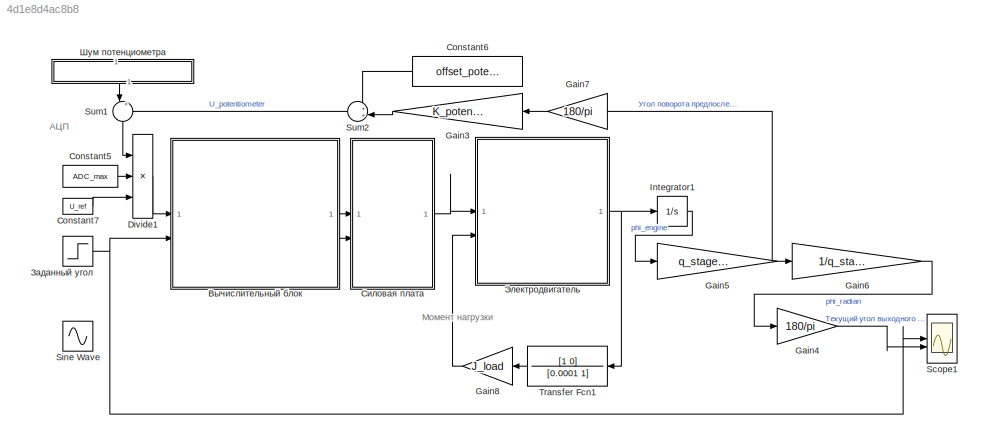
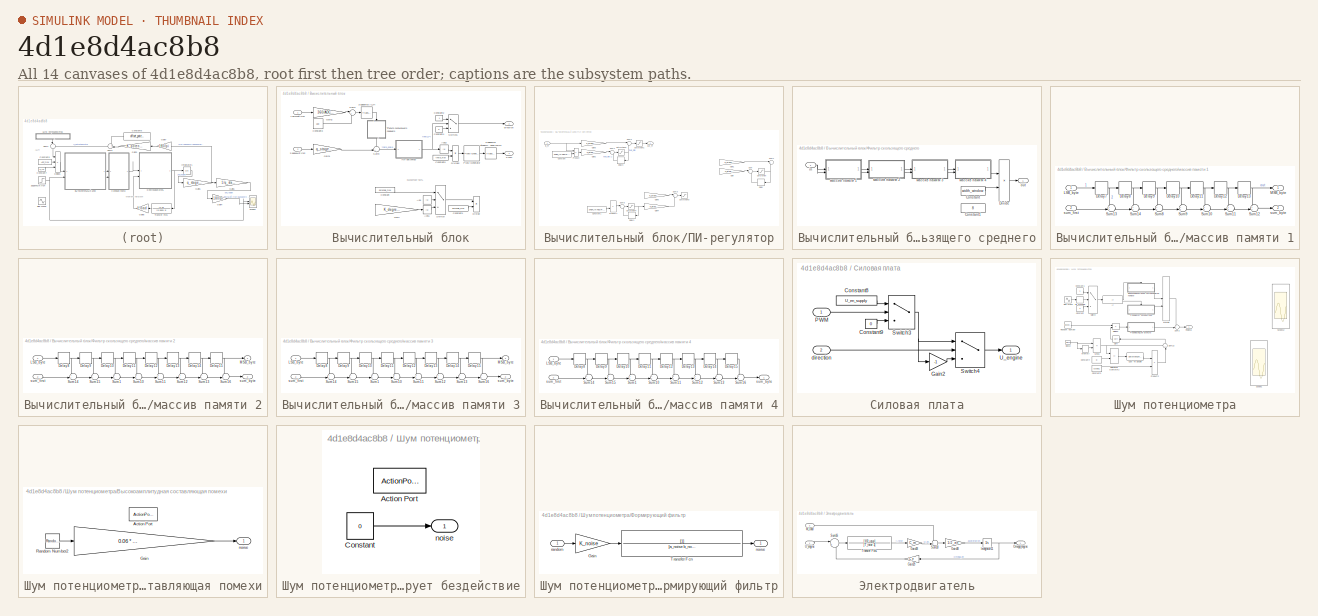
[diagram: thumbnail index - all 14 canvases of the model, root first then tree order]
MODEL slx_4d1e8d4ac8b8
KIND model
CONFIG AbsTol = auto
CONFIG EnableMultiTasking = on
CONFIG FixedStep = 1e-7
CONFIG MaxStep = auto
CONFIG MinStep = auto
CONFIG RelTol = 1e-3
CONFIG SampleTimeConstraint = Unconstrained
CONFIG SolverName = ode4
CONFIG StartTime = 0
CONFIG StopTime = 0.3
BLOCK [Constant] Constant5
  Value = ADC_max
BLOCK [Constant] Constant6
  NameLocation = top
  Value = offset_potentiometer
BLOCK [Constant] Constant7
  Value = U_ref
BLOCK [Product] Divide1
  Inputs = **/
BLOCK [Gain] Gain3
  Gain = K_potentiometer
  NameLocation = top
BLOCK [Gain] Gain4
  Gain = 180/pi
BLOCK [Gain] Gain5
  Gain = q_stage(5,1)/q
BLOCK [Gain] Gain6
  Gain = 1/q_stage(5,1)
BLOCK [Gain] Gain7
  Gain = 180/pi
  NameLocation = top
BLOCK [Gain] Gain8
  Gain = J_load
  NameLocation = top
BLOCK [Integrator] Integrator1
BLOCK [Scope] Scope1
  Floating = off
  NumInputPorts = 2
  ScopeSpecificationString = Simulink.scopes.TimeScopeBlockCfg('CurrentConfiguration', extmgr.ConfigurationSet(extmgr.Configuration('Core','General UI',true,'FigureColor',[0.862745098039216 0.862745098039216 0.862745098039216]),extmgr.Configuration('Core','Source UI',true),extmgr.Configuration('Sources','WiredSimulink',true,'DataLoggingVariableName','ScopeData1'),extmgr.Configuration('Visuals','Time Domain',true,'PlotType','L...<+1865ch>
BLOCK [Sin] Sine Wave
  Amplitude = phi_demanded
  Frequency = 2 * pi * 28.0
  SampleTime = 0
BLOCK [Sum] Sum1
  Inputs = |++
  NameLocation = left
BLOCK [Sum] Sum2
  Inputs = ++|
  NameLocation = top
BLOCK [TransferFcn] Transfer Fcn1
  Denominator = [0.0001 1]
  NameLocation = top
  Numerator = [1 0]
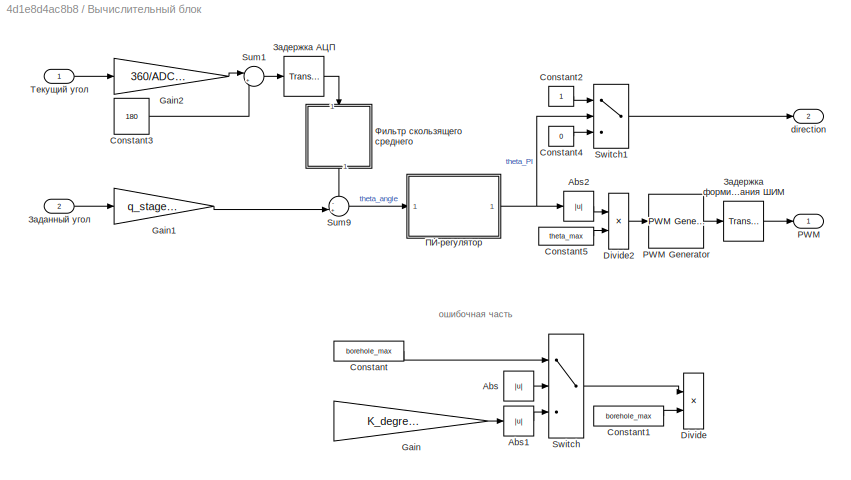
BLOCK [SubSystem] Вычислительный блок
BLOCK [Abs] Вычислительный блок/Abs
  Commented = on
  SaturateOnIntegerOverflow = off
BLOCK [Abs] Вычислительный блок/Abs1
  Commented = on
  SaturateOnIntegerOverflow = off
BLOCK [Abs] Вычислительный блок/Abs2
  SaturateOnIntegerOverflow = off
BLOCK [Constant] Вычислительный блок/Constant
  Commented = on
  Value = borehole_max
BLOCK [Constant] Вычислительный блок/Constant1
  Commented = on
  Value = borehole_max
BLOCK [Constant] Вычислительный блок/Constant2
BLOCK [Constant] Вычислительный блок/Constant3
  Value = 180
BLOCK [Constant] Вычислительный блок/Constant4
  Value = 0
BLOCK [Constant] Вычислительный блок/Constant5
  Value = theta_max
BLOCK [Product] Вычислительный блок/Divide
  Commented = on
  Inputs = */
BLOCK [Product] Вычислительный блок/Divide2
  Inputs = */
BLOCK [Gain] Вычислительный блок/Gain
  Commented = on
  Gain = K_degrees2borehole
BLOCK [Gain] Вычислительный блок/Gain1
  Gain = q_stage(5,1)
BLOCK [Gain] Вычислительный блок/Gain2
  Gain = 360/ADC_max
BLOCK [Outport] Вычислительный блок/PWM
BLOCK [Reference] Вычислительный блок/PWM Generator  REF=eePwmGenerator/PWM Generator
  LibrarySourceBlock = ee_sl_lib/Pulse Width\nModulation/PWM Generator
  SourceBlock = eePwmGenerator/PWM Generator
  SourceType = PWM Generator
BLOCK [Sum] Вычислительный блок/Sum1
  Inputs = |+-
BLOCK [Sum] Вычислительный блок/Sum9
  Inputs = -+|
BLOCK [Switch] Вычислительный блок/Switch
  Commented = on
  InputSameDT = off
  SaturateOnIntegerOverflow = off
  Threshold = 316
BLOCK [Switch] Вычислительный блок/Switch1
  Criteria = u2 > Threshold
  InputSameDT = off
  SaturateOnIntegerOverflow = off
BLOCK [Outport] Вычислительный блок/direction
  Port = 2
BLOCK [Inport] Вычислительный блок/Заданный угол
  Port = 2
BLOCK [TransportDelay] Вычислительный блок/Задержка АЦП
  DelayTime = delay_ADC - 0.276*1e-5
  NameLocation = top
BLOCK [TransportDelay] Вычислительный блок/Задержка формирования ШИМ
  DelayTime = delay_calc_borehole
  NameLocation = top
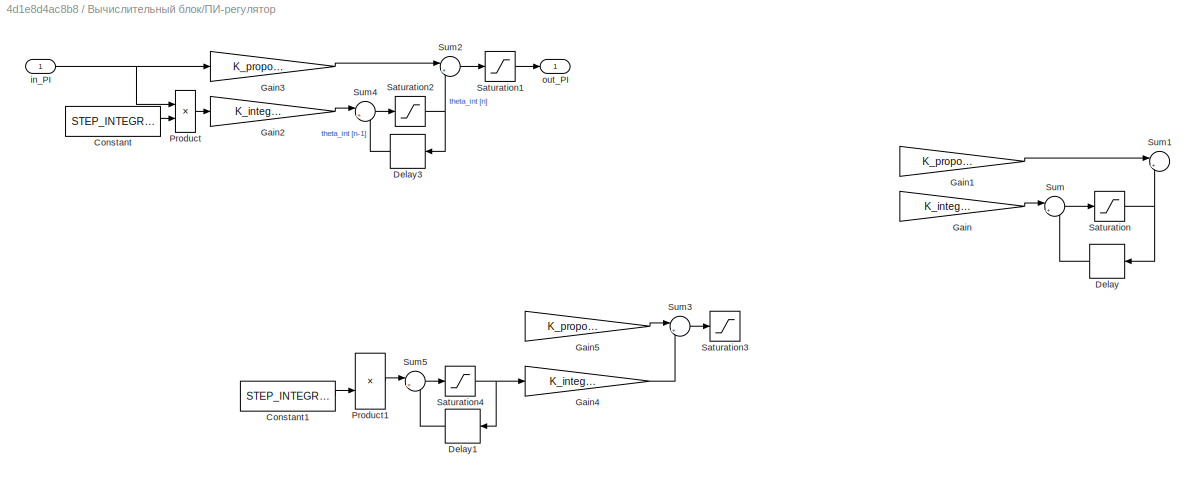
BLOCK [SubSystem] Вычислительный блок/ПИ-регулятор
BLOCK [Constant] Вычислительный блок/ПИ-регулятор/Constant
  Value = STEP_INTEGRAL
BLOCK [Constant] Вычислительный блок/ПИ-регулятор/Constant1
  Commented = on
  Value = STEP_INTEGRAL
BLOCK [Delay] Вычислительный блок/ПИ-регулятор/Delay
  Commented = on
  DelayLength = 1
  InputPortMap = u0
  NameLocation = top
  SampleTime = 0.0008
BLOCK [Delay] Вычислительный блок/ПИ-регулятор/Delay1
  Commented = on
  DelayLength = 1
  InputPortMap = u0
  NameLocation = top
  SampleTime = 0.000002
BLOCK [Delay] Вычислительный блок/ПИ-регулятор/Delay3
  DelayLength = 1
  InputPortMap = u0
  NameLocation = top
  SampleTime = 0.000002
BLOCK [Gain] Вычислительный блок/ПИ-регулятор/Gain
  Commented = on
  Gain = K_integral
BLOCK [Gain] Вычислительный блок/ПИ-регулятор/Gain1
  Commented = on
  Gain = K_proportional
BLOCK [Gain] Вычислительный блок/ПИ-регулятор/Gain2
  Gain = K_integral
BLOCK [Gain] Вычислительный блок/ПИ-регулятор/Gain3
  Gain = K_proportional
BLOCK [Gain] Вычислительный блок/ПИ-регулятор/Gain4
  Commented = on
  Gain = K_integral
BLOCK [Gain] Вычислительный блок/ПИ-регулятор/Gain5
  Commented = on
  Gain = K_proportional
BLOCK [Product] Вычислительный блок/ПИ-регулятор/Product
BLOCK [Product] Вычислительный блок/ПИ-регулятор/Product1
  Commented = on
BLOCK [Saturate] Вычислительный блок/ПИ-регулятор/Saturation
  Commented = on
BLOCK [Saturate] Вычислительный блок/ПИ-регулятор/Saturation1
  LowerLimit = -316
  UpperLimit = 316
BLOCK [Saturate] Вычислительный блок/ПИ-регулятор/Saturation2
BLOCK [Saturate] Вычислительный блок/ПИ-регулятор/Saturation3
  Commented = on
  LowerLimit = -316
  UpperLimit = 316
BLOCK [Saturate] Вычислительный блок/ПИ-регулятор/Saturation4
  Commented = on
BLOCK [Sum] Вычислительный блок/ПИ-регулятор/Sum
  Commented = on
  Inputs = |++
BLOCK [Sum] Вычислительный блок/ПИ-регулятор/Sum1
  Commented = on
  Inputs = |++
BLOCK [Sum] Вычислительный блок/ПИ-регулятор/Sum2
  Inputs = |++
BLOCK [Sum] Вычислительный блок/ПИ-регулятор/Sum3
  Commented = on
  Inputs = |++
BLOCK [Sum] Вычислительный блок/ПИ-регулятор/Sum4
  Inputs = |++
BLOCK [Sum] Вычислительный блок/ПИ-регулятор/Sum5
  Commented = on
  Inputs = |++
BLOCK [Inport] Вычислительный блок/ПИ-регулятор/in_PI
BLOCK [Outport] Вычислительный блок/ПИ-регулятор/out_PI
BLOCK [Inport] Вычислительный блок/Текущий угол
BLOCK [SubSystem] Вычислительный блок/Фильтр скользящего среднего
  NameLocation = right
BLOCK [Constant] Вычислительный блок/Фильтр скользящего среднего/Constant
  Value = width_window
BLOCK [Constant] Вычислительный блок/Фильтр скользящего среднего/Constant1
  Value = 8
BLOCK [Product] Вычислительный блок/Фильтр скользящего среднего/Divide
  Inputs = */
BLOCK [Inport] Вычислительный блок/Фильтр скользящего среднего/in
BLOCK [Outport] Вычислительный блок/Фильтр скользящего среднего/out
BLOCK [SubSystem] Вычислительный блок/Фильтр скользящего среднего/массив памяти 1
BLOCK [Delay] Вычислительный блок/Фильтр скользящего среднего/массив памяти 1/Delay10
  DelayLength = adc_delay_length
  InputPortMap = u0
  SampleTime = adc_sample
BLOCK [Delay] Вычислительный блок/Фильтр скользящего среднего/массив памяти 1/Delay11
  DelayLength = adc_delay_length
  InputPortMap = u0
  SampleTime = adc_sample
BLOCK [Delay] Вычислительный блок/Фильтр скользящего среднего/массив памяти 1/Delay12
  DelayLength = adc_delay_length
  InputPortMap = u0
  SampleTime = adc_sample
BLOCK [Delay] Вычислительный блок/Фильтр скользящего среднего/массив памяти 1/Delay13
  DelayLength = adc_delay_length
  InputPortMap = u0
  SampleTime = adc_sample
BLOCK [Delay] Вычислительный блок/Фильтр скользящего среднего/массив памяти 1/Delay7
  DelayLength = adc_delay_length
  InputPortMap = u0
  SampleTime = adc_sample
BLOCK [Delay] Вычислительный блок/Фильтр скользящего среднего/массив памяти 1/Delay8
  DelayLength = adc_delay_length
  InputPortMap = u0
  SampleTime = adc_sample
BLOCK [Delay] Вычислительный блок/Фильтр скользящего среднего/массив памяти 1/Delay9
  DelayLength = adc_delay_length
  InputPortMap = u0
  SampleTime = adc_sample
BLOCK [Inport] Вычислительный блок/Фильтр скользящего среднего/массив памяти 1/LSB_byte
BLOCK [Outport] Вычислительный блок/Фильтр скользящего среднего/массив памяти 1/MSB_byte
BLOCK [Sum] Вычислительный блок/Фильтр скользящего среднего/массив памяти 1/Sum10
  Inputs = ++|
BLOCK [Sum] Вычислительный блок/Фильтр скользящего среднего/массив памяти 1/Sum11
  Inputs = ++|
BLOCK [Sum] Вычислительный блок/Фильтр скользящего среднего/массив памяти 1/Sum12
  Inputs = ++|
BLOCK [Sum] Вычислительный блок/Фильтр скользящего среднего/массив памяти 1/Sum13
  Inputs = ++|
BLOCK [Sum] Вычислительный блок/Фильтр скользящего среднего/массив памяти 1/Sum14
  Inputs = ++|
BLOCK [Sum] Вычислительный блок/Фильтр скользящего среднего/массив памяти 1/Sum8
  Inputs = ++|
BLOCK [Sum] Вычислительный блок/Фильтр скользящего среднего/массив памяти 1/Sum9
  Inputs = ++|
BLOCK [Outport] Вычислительный блок/Фильтр скользящего среднего/массив памяти 1/sum_byte
  Port = 2
BLOCK [Inport] Вычислительный блок/Фильтр скользящего среднего/массив памяти 1/sum_first
  Port = 2
BLOCK [SubSystem] Вычислительный блок/Фильтр скользящего среднего/массив памяти 2
BLOCK [Delay] Вычислительный блок/Фильтр скользящего среднего/массив памяти 2/Delay10
  DelayLength = adc_delay_length
  InputPortMap = u0
  SampleTime = adc_sample
BLOCK [Delay] Вычислительный блок/Фильтр скользящего среднего/массив памяти 2/Delay11
  DelayLength = adc_delay_length
  InputPortMap = u0
  SampleTime = adc_sample
BLOCK [Delay] Вычислительный блок/Фильтр скользящего среднего/массив памяти 2/Delay12
  DelayLength = adc_delay_length
  InputPortMap = u0
  SampleTime = adc_sample
BLOCK [Delay] Вычислительный блок/Фильтр скользящего среднего/массив памяти 2/Delay13
  DelayLength = adc_delay_length
  InputPortMap = u0
  SampleTime = adc_sample
BLOCK [Delay] Вычислительный блок/Фильтр скользящего среднего/массив памяти 2/Delay14
  DelayLength = adc_delay_length
  InputPortMap = u0
  SampleTime = adc_sample
BLOCK [Delay] Вычислительный блок/Фильтр скользящего среднего/массив памяти 2/Delay15
  DelayLength = adc_delay_length
  InputPortMap = u0
  SampleTime = adc_sample
BLOCK [Delay] Вычислительный блок/Фильтр скользящего среднего/массив памяти 2/Delay8
  DelayLength = adc_delay_length
  InputPortMap = u0
  SampleTime = adc_sample
BLOCK [Delay] Вычислительный блок/Фильтр скользящего среднего/массив памяти 2/Delay9
  DelayLength = adc_delay_length
  InputPortMap = u0
  SampleTime = adc_sample
BLOCK [Inport] Вычислительный блок/Фильтр скользящего среднего/массив памяти 2/LSB_byte
BLOCK [Outport] Вычислительный блок/Фильтр скользящего среднего/массив памяти 2/MSB_byte
BLOCK [Sum] Вычислительный блок/Фильтр скользящего среднего/массив памяти 2/Sum1
  Inputs = ++|
BLOCK [Sum] Вычислительный блок/Фильтр скользящего среднего/массив памяти 2/Sum10
  Inputs = ++|
BLOCK [Sum] Вычислительный блок/Фильтр скользящего среднего/массив памяти 2/Sum11
  Inputs = ++|
BLOCK [Sum] Вычислительный блок/Фильтр скользящего среднего/массив памяти 2/Sum12
  Inputs = ++|
BLOCK [Sum] Вычислительный блок/Фильтр скользящего среднего/массив памяти 2/Sum13
  Inputs = ++|
BLOCK [Sum] Вычислительный блок/Фильтр скользящего среднего/массив памяти 2/Sum14
  Inputs = ++|
BLOCK [Sum] Вычислительный блок/Фильтр скользящего среднего/массив памяти 2/Sum15
  Inputs = ++|
BLOCK [Sum] Вычислительный блок/Фильтр скользящего среднего/массив памяти 2/Sum16
  Inputs = ++|
BLOCK [Outport] Вычислительный блок/Фильтр скользящего среднего/массив памяти 2/sum_byte
  Port = 2
BLOCK [Inport] Вычислительный блок/Фильтр скользящего среднего/массив памяти 2/sum_first
  Port = 2
BLOCK [SubSystem] Вычислительный блок/Фильтр скользящего среднего/массив памяти 3
BLOCK [Delay] Вычислительный блок/Фильтр скользящего среднего/массив памяти 3/Delay10
  DelayLength = adc_delay_length
  InputPortMap = u0
  SampleTime = adc_sample
BLOCK [Delay] Вычислительный блок/Фильтр скользящего среднего/массив памяти 3/Delay11
  DelayLength = adc_delay_length
  InputPortMap = u0
  SampleTime = adc_sample
BLOCK [Delay] Вычислительный блок/Фильтр скользящего среднего/массив памяти 3/Delay12
  DelayLength = adc_delay_length
  InputPortMap = u0
  SampleTime = adc_sample
BLOCK [Delay] Вычислительный блок/Фильтр скользящего среднего/массив памяти 3/Delay13
  DelayLength = adc_delay_length
  InputPortMap = u0
  SampleTime = adc_sample
BLOCK [Delay] Вычислительный блок/Фильтр скользящего среднего/массив памяти 3/Delay14
  DelayLength = adc_delay_length
  InputPortMap = u0
  SampleTime = adc_sample
BLOCK [Delay] Вычислительный блок/Фильтр скользящего среднего/массив памяти 3/Delay15
  DelayLength = adc_delay_length
  InputPortMap = u0
  SampleTime = adc_sample
BLOCK [Delay] Вычислительный блок/Фильтр скользящего среднего/массив памяти 3/Delay8
  DelayLength = adc_delay_length
  InputPortMap = u0
  SampleTime = adc_sample
BLOCK [Delay] Вычислительный блок/Фильтр скользящего среднего/массив памяти 3/Delay9
  DelayLength = adc_delay_length
  InputPortMap = u0
  SampleTime = adc_sample
BLOCK [Inport] Вычислительный блок/Фильтр скользящего среднего/массив памяти 3/LSB_byte
BLOCK [Outport] Вычислительный блок/Фильтр скользящего среднего/массив памяти 3/MSB_byte
BLOCK [Sum] Вычислительный блок/Фильтр скользящего среднего/массив памяти 3/Sum1
  Inputs = ++|
BLOCK [Sum] Вычислительный блок/Фильтр скользящего среднего/массив памяти 3/Sum10
  Inputs = ++|
BLOCK [Sum] Вычислительный блок/Фильтр скользящего среднего/массив памяти 3/Sum11
  Inputs = ++|
BLOCK [Sum] Вычислительный блок/Фильтр скользящего среднего/массив памяти 3/Sum12
  Inputs = ++|
BLOCK [Sum] Вычислительный блок/Фильтр скользящего среднего/массив памяти 3/Sum13
  Inputs = ++|
BLOCK [Sum] Вычислительный блок/Фильтр скользящего среднего/массив памяти 3/Sum14
  Inputs = ++|
BLOCK [Sum] Вычислительный блок/Фильтр скользящего среднего/массив памяти 3/Sum15
  Inputs = ++|
BLOCK [Sum] Вычислительный блок/Фильтр скользящего среднего/массив памяти 3/Sum16
  Inputs = ++|
BLOCK [Outport] Вычислительный блок/Фильтр скользящего среднего/массив памяти 3/sum_byte
  Port = 2
BLOCK [Inport] Вычислительный блок/Фильтр скользящего среднего/массив памяти 3/sum_first
  Port = 2
BLOCK [SubSystem] Вычислительный блок/Фильтр скользящего среднего/массив памяти 4
BLOCK [Delay] Вычислительный блок/Фильтр скользящего среднего/массив памяти 4/Delay10
  DelayLength = adc_delay_length
  InputPortMap = u0
  SampleTime = adc_sample
BLOCK [Delay] Вычислительный блок/Фильтр скользящего среднего/массив памяти 4/Delay11
  DelayLength = adc_delay_length
  InputPortMap = u0
  SampleTime = adc_sample
BLOCK [Delay] Вычислительный блок/Фильтр скользящего среднего/массив памяти 4/Delay12
  DelayLength = adc_delay_length
  InputPortMap = u0
  SampleTime = adc_sample
BLOCK [Delay] Вычислительный блок/Фильтр скользящего среднего/массив памяти 4/Delay13
  DelayLength = adc_delay_length
  InputPortMap = u0
  SampleTime = adc_sample
BLOCK [Delay] Вычислительный блок/Фильтр скользящего среднего/массив памяти 4/Delay14
  DelayLength = adc_delay_length
  InputPortMap = u0
  SampleTime = adc_sample
BLOCK [Delay] Вычислительный блок/Фильтр скользящего среднего/массив памяти 4/Delay15
  DelayLength = adc_delay_length
  InputPortMap = u0
BLOCK [Delay] Вычислительный блок/Фильтр скользящего среднего/массив памяти 4/Delay8
  DelayLength = adc_delay_length
  InputPortMap = u0
  SampleTime = adc_sample
BLOCK [Delay] Вычислительный блок/Фильтр скользящего среднего/массив памяти 4/Delay9
  DelayLength = adc_delay_length
  InputPortMap = u0
  SampleTime = adc_sample
BLOCK [Inport] Вычислительный блок/Фильтр скользящего среднего/массив памяти 4/LSB_byte
BLOCK [Sum] Вычислительный блок/Фильтр скользящего среднего/массив памяти 4/Sum1
  Inputs = ++|
BLOCK [Sum] Вычислительный блок/Фильтр скользящего среднего/массив памяти 4/Sum10
  Inputs = ++|
BLOCK [Sum] Вычислительный блок/Фильтр скользящего среднего/массив памяти 4/Sum11
  Inputs = ++|
BLOCK [Sum] Вычислительный блок/Фильтр скользящего среднего/массив памяти 4/Sum12
  Inputs = ++|
BLOCK [Sum] Вычислительный блок/Фильтр скользящего среднего/массив памяти 4/Sum13
  Inputs = ++|
BLOCK [Sum] Вычислительный блок/Фильтр скользящего среднего/массив памяти 4/Sum14
  Inputs = ++|
BLOCK [Sum] Вычислительный блок/Фильтр скользящего среднего/массив памяти 4/Sum15
  Inputs = ++|
BLOCK [Sum] Вычислительный блок/Фильтр скользящего среднего/массив памяти 4/Sum16
  Inputs = ++|
BLOCK [Outport] Вычислительный блок/Фильтр скользящего среднего/массив памяти 4/sum_byte
BLOCK [Inport] Вычислительный блок/Фильтр скользящего среднего/массив памяти 4/sum_first
  Port = 2
BLOCK [Step] Заданный угол
  After = phi_demanded
  SampleTime = 0
  Time = 0
BLOCK [SubSystem] Силовая плата
BLOCK [Constant] Силовая плата/Constant8
  Value = U_en_supply
BLOCK [Constant] Силовая плата/Constant9
  Value = 0
BLOCK [Gain] Силовая плата/Gain2
  Gain = -1
BLOCK [Inport] Силовая плата/PWM
BLOCK [Switch] Силовая плата/Switch3
  Criteria = u2 > Threshold
  InputSameDT = off
  SaturateOnIntegerOverflow = off
BLOCK [Switch] Силовая плата/Switch4
  Criteria = u2 > Threshold
  InputSameDT = off
  SaturateOnIntegerOverflow = off
BLOCK [Outport] Силовая плата/U_engine
BLOCK [Inport] Силовая плата/direction
  Port = 2
BLOCK [SubSystem] Шум потенциометра
  NameLocation = top
  ShowPortLabels = none
BLOCK [DataTypeConversion] Шум потенциометра/Cast To Double
  OutDataTypeStr = double
  RndMeth = Floor
  SaturateOnIntegerOverflow = off
BLOCK [Clock] Шум потенциометра/Clock2
BLOCK [Constant] Шум потенциометра/Constant
  Value = 0
BLOCK [Constant] Шум потенциометра/Constant1
BLOCK [Constant] Шум потенциометра/Constant3
  Value = 0.0001
BLOCK [Constant] Шум потенциометра/Constant4
  Value = 0
BLOCK [Product] Шум потенциометра/Divide3
  Inputs = */
BLOCK [HitCross] Шум потенциометра/Hit Crossing
  HitCrossingDirection = rising
BLOCK [If] Шум потенциометра/If
  IfExpression = u1 == 1
BLOCK [Memory] Шум потенциометра/Memory
BLOCK [Merge] Шум потенциометра/Merge
BLOCK [Sum] Шум потенциометра/Minus
  IconShape = rectangular
  Inputs = +-
BLOCK [Product] Шум потенциометра/Product2
BLOCK [RandomNumber] Шум потенциометра/Random Number
  SampleTime = 0.00003
  Seed = clock_for_random(1)
BLOCK [RelationalOperator] Шум потенциометра/Relational Operator2
  InputSameDT = off
  Operator = ==
  OutDataTypeStr = boolean
  RndMeth = Simplest
BLOCK [Scope] Шум потенциометра/Scope1
  Floating = off
  NumInputPorts = 3
  ScopeSpecificationString = Simulink.scopes.TimeScopeBlockCfg('CurrentConfiguration', extmgr.ConfigurationSet(extmgr.Configuration('Core','General UI',true,'FigureColor',[0.862745098039216 0.862745098039216 0.862745098039216]),extmgr.Configuration('Core','Source UI',true),extmgr.Configuration('Sources','WiredSimulink',true,'DataLoggingVariableName','ScopeData1'),extmgr.Configuration('Visuals','Time Domain',true,'PlotType','L...<+1912ch>
BLOCK [Scope] Шум потенциометра/Scope12
  Floating = off
  NumInputPorts = 3
  ScopeSpecificationString = Simulink.scopes.TimeScopeBlockCfg('CurrentConfiguration', extmgr.ConfigurationSet(extmgr.Configuration('Core','General UI',true,'FigureColor',[0.862745098039216 0.862745098039216 0.862745098039216]),extmgr.Configuration('Core','Source UI',true),extmgr.Configuration('Sources','WiredSimulink',true,'DataLoggingVariableName','ScopeData8'),extmgr.Configuration('Visuals','Time Domain',true,'PlotType','L...<+1937ch>
BLOCK [Sin] Шум потенциометра/Sine Wave
  Frequency = 1350
  SampleTime = 0
BLOCK [Sqrt] Шум потенциометра/Sqrt
  NameLocation = top
BLOCK [Sum] Шум потенциометра/Sum2
  Inputs = ++|
BLOCK [Sum] Шум потенциометра/Sum22
  Inputs = ++|
  NameLocation = right
BLOCK [Switch] Шум потенциометра/Switch
  Criteria = u2 > Threshold
  InputSameDT = off
  SaturateOnIntegerOverflow = off
BLOCK [SubSystem] Шум потенциометра/Высокоамплитудная составляющая помехи
  TreatAsAtomicUnit = on
BLOCK [ActionPort] Шум потенциометра/Высокоамплитудная составляющая помехи/Action Port
  ActionPortLabel = if(u1 == 1)
BLOCK [Gain] Шум потенциометра/Высокоамплитудная составляющая помехи/Gain
  Gain = 0.06 * phi_demanded / degrees_shaft_max
BLOCK [RandomNumber] Шум потенциометра/Высокоамплитудная составляющая помехи/Random Number2
  SampleTime = 0
  Seed = clock_for_random(2)
  Variance = 10
BLOCK [Outport] Шум потенциометра/Высокоамплитудная составляющая помехи/noise
BLOCK [Outport] Шум потенциометра/Помеха
BLOCK [SubSystem] Шум потенциометра/Формирует бездействие
  TreatAsAtomicUnit = on
BLOCK [ActionPort] Шум потенциометра/Формирует бездействие/Action Port
  ActionPortLabel = else
BLOCK [Constant] Шум потенциометра/Формирует бездействие/Constant
  Value = 0
BLOCK [Outport] Шум потенциометра/Формирует бездействие/noise
BLOCK [SubSystem] Шум потенциометра/Формирующий фильтр
BLOCK [Gain] Шум потенциометра/Формирующий фильтр/Gain
  Gain = K_noise
BLOCK [TransferFcn] Шум потенциометра/Формирующий фильтр/Transfer Fcn
  Denominator = [a_noise b_noise 1]
BLOCK [Outport] Шум потенциометра/Формирующий фильтр/noise
BLOCK [Inport] Шум потенциометра/Формирующий фильтр/random
BLOCK [SubSystem] Электродвигатель
BLOCK [Gain] Электродвигатель/Gain28
  Gain = C_m
BLOCK [Gain] Электродвигатель/Gain29
  Gain = C_e
  NameLocation = top
BLOCK [Gain] Электродвигатель/Gain38
  Gain = 1/J_en
BLOCK [Integrator] Электродвигатель/Integrator11
BLOCK [Inport] Электродвигатель/M_load
  Port = 2
BLOCK [Outport] Электродвигатель/Omega_engine
BLOCK [Sum] Электродвигатель/Sum16
  Inputs = |+-
BLOCK [Sum] Электродвигатель/Sum18
  Inputs = -+|
BLOCK [TransferFcn] Электродвигатель/Transfer Fcn1
  Denominator = [T_rotor 1]
  Numerator = [1/R_rotor]
BLOCK [Inport] Электродвигатель/U_engine
ANNOTATION (root): АЦП
ANNOTATION (root): Момент нагрузки
ANNOTATION Вычислительный блок: ошибочная часть
LINE Constant5:1 -> Divide1:2
LINE Constant6:1 -> Sum2:1
LINE Constant7:1 -> Divide1:3
LINE Divide1:1 -> Вычислительный блок:1
LINE Gain3:1 -> Sum2:2
LINE Gain4:1 -> Scope1:2
NET Gain5:1 -> Gain6:1, Gain7:1
LINE Gain6:1 -> Gain4:1
LINE Gain7:1 -> Gain3:1
LINE Gain8:1 -> Электродвигатель:2
LINE Integrator1:1 -> Gain5:1
LINE Sum1:1 -> Divide1:1
LINE Sum2:1 -> Sum1:2
LINE Transfer Fcn1:1 -> Gain8:1
LINE Вычислительный блок/Abs1:1 -> Вычислительный блок/Switch:3
LINE Вычислительный блок/Abs2:1 -> Вычислительный блок/Divide2:1
LINE Вычислительный блок/Abs:1 -> Вычислительный блок/Switch:2
LINE Вычислительный блок/Constant1:1 -> Вычислительный блок/Divide:2
LINE Вычислительный блок/Constant2:1 -> Вычислительный блок/Switch1:1
LINE Вычислительный блок/Constant3:1 -> Вычислительный блок/Sum1:2
LINE Вычислительный блок/Constant4:1 -> Вычислительный блок/Switch1:3
LINE Вычислительный блок/Constant5:1 -> Вычислительный блок/Divide2:2
LINE Вычислительный блок/Constant:1 -> Вычислительный блок/Switch:1
LINE Вычислительный блок/Divide2:1 -> Вычислительный блок/PWM Generator:1
LINE Вычислительный блок/Gain1:1 -> Вычислительный блок/Sum9:2
LINE Вычислительный блок/Gain2:1 -> Вычислительный блок/Sum1:1
LINE Вычислительный блок/Gain:1 -> Вычислительный блок/Abs1:1
LINE Вычислительный блок/PWM Generator:1 -> Вычислительный блок/Задержка формирования ШИМ:1
LINE Вычислительный блок/Sum1:1 -> Вычислительный блок/Задержка АЦП:1
LINE Вычислительный блок/Sum9:1 -> Вычислительный блок/ПИ-регулятор:1
LINE Вычислительный блок/Switch1:1 -> Вычислительный блок/direction:1
LINE Вычислительный блок/Switch:1 -> Вычислительный блок/Divide:1
LINE Вычислительный блок/Заданный угол:1 -> Вычислительный блок/Gain1:1
LINE Вычислительный блок/Задержка АЦП:1 -> Вычислительный блок/Фильтр скользящего среднего:1
LINE Вычислительный блок/Задержка формирования ШИМ:1 -> Вычислительный блок/PWM:1
LINE Вычислительный блок/ПИ-регулятор/Constant1:1 -> Вычислительный блок/ПИ-регулятор/Product1:2
LINE Вычислительный блок/ПИ-регулятор/Constant:1 -> Вычислительный блок/ПИ-регулятор/Product:2
LINE Вычислительный блок/ПИ-регулятор/Delay1:1 -> Вычислительный блок/ПИ-регулятор/Sum5:2
LINE Вычислительный блок/ПИ-регулятор/Delay3:1 -> Вычислительный блок/ПИ-регулятор/Sum4:2
LINE Вычислительный блок/ПИ-регулятор/Delay:1 -> Вычислительный блок/ПИ-регулятор/Sum:2
LINE Вычислительный блок/ПИ-регулятор/Gain1:1 -> Вычислительный блок/ПИ-регулятор/Sum1:1
LINE Вычислительный блок/ПИ-регулятор/Gain2:1 -> Вычислительный блок/ПИ-регулятор/Sum4:1
LINE Вычислительный блок/ПИ-регулятор/Gain3:1 -> Вычислительный блок/ПИ-регулятор/Sum2:1
LINE Вычислительный блок/ПИ-регулятор/Gain4:1 -> Вычислительный блок/ПИ-регулятор/Sum3:2
LINE Вычислительный блок/ПИ-регулятор/Gain5:1 -> Вычислительный блок/ПИ-регулятор/Sum3:1
LINE Вычислительный блок/ПИ-регулятор/Gain:1 -> Вычислительный блок/ПИ-регулятор/Sum:1
LINE Вычислительный блок/ПИ-регулятор/Product1:1 -> Вычислительный блок/ПИ-регулятор/Sum5:1
LINE Вычислительный блок/ПИ-регулятор/Product:1 -> Вычислительный блок/ПИ-регулятор/Gain2:1
LINE Вычислительный блок/ПИ-регулятор/Saturation1:1 -> Вычислительный блок/ПИ-регулятор/out_PI:1
NET Вычислительный блок/ПИ-регулятор/Saturation2:1 -> Вычислительный блок/ПИ-регулятор/Delay3:1, Вычислительный блок/ПИ-регулятор/Sum2:2
NET Вычислительный блок/ПИ-регулятор/Saturation4:1 -> Вычислительный блок/ПИ-регулятор/Delay1:1, Вычислительный блок/ПИ-регулятор/Gain4:1
NET Вычислительный блок/ПИ-регулятор/Saturation:1 -> Вычислительный блок/ПИ-регулятор/Delay:1, Вычислительный блок/ПИ-регулятор/Sum1:2
LINE Вычислительный блок/ПИ-регулятор/Sum2:1 -> Вычислительный блок/ПИ-регулятор/Saturation1:1
LINE Вычислительный блок/ПИ-регулятор/Sum3:1 -> Вычислительный блок/ПИ-регулятор/Saturation3:1
LINE Вычислительный блок/ПИ-регулятор/Sum4:1 -> Вычислительный блок/ПИ-регулятор/Saturation2:1
LINE Вычислительный блок/ПИ-регулятор/Sum5:1 -> Вычислительный блок/ПИ-регулятор/Saturation4:1
LINE Вычислительный блок/ПИ-регулятор/Sum:1 -> Вычислительный блок/ПИ-регулятор/Saturation:1
NET Вычислительный блок/ПИ-регулятор/in_PI:1 -> Вычислительный блок/ПИ-регулятор/Gain3:1, Вычислительный блок/ПИ-регулятор/Product:1
NET Вычислительный блок/ПИ-регулятор:1 -> Вычислительный блок/Abs2:1, Вычислительный блок/Switch1:2
LINE Вычислительный блок/Текущий угол:1 -> Вычислительный блок/Gain2:1
LINE Вычислительный блок/Фильтр скользящего среднего/Constant:1 -> Вычислительный блок/Фильтр скользящего среднего/Divide:2
LINE Вычислительный блок/Фильтр скользящего среднего/Divide:1 -> Вычислительный блок/Фильтр скользящего среднего/out:1
NET Вычислительный блок/Фильтр скользящего среднего/in:1 -> Вычислительный блок/Фильтр скользящего среднего/массив памяти 1:1, Вычислительный блок/Фильтр скользящего среднего/массив памяти 1:2
NET Вычислительный блок/Фильтр скользящего среднего/массив памяти 1/Delay10:1 -> Вычислительный блок/Фильтр скользящего среднего/массив памяти 1/Delay11:1, Вычислительный блок/Фильтр скользящего среднего/массив памяти 1/Sum9:1
NET Вычислительный блок/Фильтр скользящего среднего/массив памяти 1/Delay11:1 -> Вычислительный блок/Фильтр скользящего среднего/массив памяти 1/Delay12:1, Вычислительный блок/Фильтр скользящего среднего/массив памяти 1/Sum10:1
NET Вычислительный блок/Фильтр скользящего среднего/массив памяти 1/Delay12:1 -> Вычислительный блок/Фильтр скользящего среднего/массив памяти 1/Delay13:1, Вычислительный блок/Фильтр скользящего среднего/массив памяти 1/Sum11:1
NET Вычислительный блок/Фильтр скользящего среднего/массив памяти 1/Delay13:1 -> Вычислительный блок/Фильтр скользящего среднего/массив памяти 1/MSB_byte:1, Вычислительный блок/Фильтр скользящего среднего/массив памяти 1/Sum12:1
NET Вычислительный блок/Фильтр скользящего среднего/массив памяти 1/Delay7:1 -> Вычислительный блок/Фильтр скользящего среднего/массив памяти 1/Delay8:1, Вычислительный блок/Фильтр скользящего среднего/массив памяти 1/Sum13:1
NET Вычислительный блок/Фильтр скользящего среднего/массив памяти 1/Delay8:1 -> Вычислительный блок/Фильтр скользящего среднего/массив памяти 1/Delay9:1, Вычислительный блок/Фильтр скользящего среднего/массив памяти 1/Sum14:1
NET Вычислительный блок/Фильтр скользящего среднего/массив памяти 1/Delay9:1 -> Вычислительный блок/Фильтр скользящего среднего/массив памяти 1/Delay10:1, Вычислительный блок/Фильтр скользящего среднего/массив памяти 1/Sum8:1
LINE Вычислительный блок/Фильтр скользящего среднего/массив памяти 1/LSB_byte:1 -> Вычислительный блок/Фильтр скользящего среднего/массив памяти 1/Delay7:1
LINE Вычислительный блок/Фильтр скользящего среднего/массив памяти 1/Sum10:1 -> Вычислительный блок/Фильтр скользящего среднего/массив памяти 1/Sum11:2
LINE Вычислительный блок/Фильтр скользящего среднего/массив памяти 1/Sum11:1 -> Вычислительный блок/Фильтр скользящего среднего/массив памяти 1/Sum12:2
LINE Вычислительный блок/Фильтр скользящего среднего/массив памяти 1/Sum12:1 -> Вычислительный блок/Фильтр скользящего среднего/массив памяти 1/sum_byte:1
LINE Вычислительный блок/Фильтр скользящего среднего/массив памяти 1/Sum13:1 -> Вычислительный блок/Фильтр скользящего среднего/массив памяти 1/Sum14:2
LINE Вычислительный блок/Фильтр скользящего среднего/массив памяти 1/Sum14:1 -> Вычислительный блок/Фильтр скользящего среднего/массив памяти 1/Sum8:2
LINE Вычислительный блок/Фильтр скользящего среднего/массив памяти 1/Sum8:1 -> Вычислительный блок/Фильтр скользящего среднего/массив памяти 1/Sum9:2
LINE Вычислительный блок/Фильтр скользящего среднего/массив памяти 1/Sum9:1 -> Вычислительный блок/Фильтр скользящего среднего/массив памяти 1/Sum10:2
LINE Вычислительный блок/Фильтр скользящего среднего/массив памяти 1/sum_first:1 -> Вычислительный блок/Фильтр скользящего среднего/массив памяти 1/Sum13:2
LINE Вычислительный блок/Фильтр скользящего среднего/массив памяти 1:1 -> Вычислительный блок/Фильтр скользящего среднего/массив памяти 2:1
LINE Вычислительный блок/Фильтр скользящего среднего/массив памяти 1:2 -> Вычислительный блок/Фильтр скользящего среднего/массив памяти 2:2
NET Вычислительный блок/Фильтр скользящего среднего/массив памяти 2/Delay10:1 -> Вычислительный блок/Фильтр скользящего среднего/массив памяти 2/Delay11:1, Вычислительный блок/Фильтр скользящего среднего/массив памяти 2/Sum1:1
NET Вычислительный блок/Фильтр скользящего среднего/массив памяти 2/Delay11:1 -> Вычислительный блок/Фильтр скользящего среднего/массив памяти 2/Delay12:1, Вычислительный блок/Фильтр скользящего среднего/массив памяти 2/Sum10:1
NET Вычислительный блок/Фильтр скользящего среднего/массив памяти 2/Delay12:1 -> Вычислительный блок/Фильтр скользящего среднего/массив памяти 2/Delay13:1, Вычислительный блок/Фильтр скользящего среднего/массив памяти 2/Sum11:1
NET Вычислительный блок/Фильтр скользящего среднего/массив памяти 2/Delay13:1 -> Вычислительный блок/Фильтр скользящего среднего/массив памяти 2/Delay14:1, Вычислительный блок/Фильтр скользящего среднего/массив памяти 2/Sum12:1
NET Вычислительный блок/Фильтр скользящего среднего/массив памяти 2/Delay14:1 -> Вычислительный блок/Фильтр скользящего среднего/массив памяти 2/Delay15:1, Вычислительный блок/Фильтр скользящего среднего/массив памяти 2/Sum13:1
NET Вычислительный блок/Фильтр скользящего среднего/массив памяти 2/Delay15:1 -> Вычислительный блок/Фильтр скользящего среднего/массив памяти 2/MSB_byte:1, Вычислительный блок/Фильтр скользящего среднего/массив памяти 2/Sum16:1
NET Вычислительный блок/Фильтр скользящего среднего/массив памяти 2/Delay8:1 -> Вычислительный блок/Фильтр скользящего среднего/массив памяти 2/Delay9:1, Вычислительный блок/Фильтр скользящего среднего/массив памяти 2/Sum14:1
NET Вычислительный блок/Фильтр скользящего среднего/массив памяти 2/Delay9:1 -> Вычислительный блок/Фильтр скользящего среднего/массив памяти 2/Delay10:1, Вычислительный блок/Фильтр скользящего среднего/массив памяти 2/Sum15:1
LINE Вычислительный блок/Фильтр скользящего среднего/массив памяти 2/LSB_byte:1 -> Вычислительный блок/Фильтр скользящего среднего/массив памяти 2/Delay8:1
LINE Вычислительный блок/Фильтр скользящего среднего/массив памяти 2/Sum10:1 -> Вычислительный блок/Фильтр скользящего среднего/массив памяти 2/Sum11:2
LINE Вычислительный блок/Фильтр скользящего среднего/массив памяти 2/Sum11:1 -> Вычислительный блок/Фильтр скользящего среднего/массив памяти 2/Sum12:2
LINE Вычислительный блок/Фильтр скользящего среднего/массив памяти 2/Sum12:1 -> Вычислительный блок/Фильтр скользящего среднего/массив памяти 2/Sum13:2
LINE Вычислительный блок/Фильтр скользящего среднего/массив памяти 2/Sum13:1 -> Вычислительный блок/Фильтр скользящего среднего/массив памяти 2/Sum16:2
LINE Вычислительный блок/Фильтр скользящего среднего/массив памяти 2/Sum14:1 -> Вычислительный блок/Фильтр скользящего среднего/массив памяти 2/Sum15:2
LINE Вычислительный блок/Фильтр скользящего среднего/массив памяти 2/Sum15:1 -> Вычислительный блок/Фильтр скользящего среднего/массив памяти 2/Sum1:2
LINE Вычислительный блок/Фильтр скользящего среднего/массив памяти 2/Sum16:1 -> Вычислительный блок/Фильтр скользящего среднего/массив памяти 2/sum_byte:1
LINE Вычислительный блок/Фильтр скользящего среднего/массив памяти 2/Sum1:1 -> Вычислительный блок/Фильтр скользящего среднего/массив памяти 2/Sum10:2
LINE Вычислительный блок/Фильтр скользящего среднего/массив памяти 2/sum_first:1 -> Вычислительный блок/Фильтр скользящего среднего/массив памяти 2/Sum14:2
LINE Вычислительный блок/Фильтр скользящего среднего/массив памяти 2:1 -> Вычислительный блок/Фильтр скользящего среднего/массив памяти 3:1
LINE Вычислительный блок/Фильтр скользящего среднего/массив памяти 2:2 -> Вычислительный блок/Фильтр скользящего среднего/массив памяти 3:2
NET Вычислительный блок/Фильтр скользящего среднего/массив памяти 3/Delay10:1 -> Вычислительный блок/Фильтр скользящего среднего/массив памяти 3/Delay11:1, Вычислительный блок/Фильтр скользящего среднего/массив памяти 3/Sum1:1
NET Вычислительный блок/Фильтр скользящего среднего/массив памяти 3/Delay11:1 -> Вычислительный блок/Фильтр скользящего среднего/массив памяти 3/Delay12:1, Вычислительный блок/Фильтр скользящего среднего/массив памяти 3/Sum10:1
NET Вычислительный блок/Фильтр скользящего среднего/массив памяти 3/Delay12:1 -> Вычислительный блок/Фильтр скользящего среднего/массив памяти 3/Delay13:1, Вычислительный блок/Фильтр скользящего среднего/массив памяти 3/Sum11:1
NET Вычислительный блок/Фильтр скользящего среднего/массив памяти 3/Delay13:1 -> Вычислительный блок/Фильтр скользящего среднего/массив памяти 3/Delay14:1, Вычислительный блок/Фильтр скользящего среднего/массив памяти 3/Sum12:1
NET Вычислительный блок/Фильтр скользящего среднего/массив памяти 3/Delay14:1 -> Вычислительный блок/Фильтр скользящего среднего/массив памяти 3/Delay15:1, Вычислительный блок/Фильтр скользящего среднего/массив памяти 3/Sum13:1
NET Вычислительный блок/Фильтр скользящего среднего/массив памяти 3/Delay15:1 -> Вычислительный блок/Фильтр скользящего среднего/массив памяти 3/MSB_byte:1, Вычислительный блок/Фильтр скользящего среднего/массив памяти 3/Sum16:1
NET Вычислительный блок/Фильтр скользящего среднего/массив памяти 3/Delay8:1 -> Вычислительный блок/Фильтр скользящего среднего/массив памяти 3/Delay9:1, Вычислительный блок/Фильтр скользящего среднего/массив памяти 3/Sum14:1
NET Вычислительный блок/Фильтр скользящего среднего/массив памяти 3/Delay9:1 -> Вычислительный блок/Фильтр скользящего среднего/массив памяти 3/Delay10:1, Вычислительный блок/Фильтр скользящего среднего/массив памяти 3/Sum15:1
LINE Вычислительный блок/Фильтр скользящего среднего/массив памяти 3/LSB_byte:1 -> Вычислительный блок/Фильтр скользящего среднего/массив памяти 3/Delay8:1
LINE Вычислительный блок/Фильтр скользящего среднего/массив памяти 3/Sum10:1 -> Вычислительный блок/Фильтр скользящего среднего/массив памяти 3/Sum11:2
LINE Вычислительный блок/Фильтр скользящего среднего/массив памяти 3/Sum11:1 -> Вычислительный блок/Фильтр скользящего среднего/массив памяти 3/Sum12:2
LINE Вычислительный блок/Фильтр скользящего среднего/массив памяти 3/Sum12:1 -> Вычислительный блок/Фильтр скользящего среднего/массив памяти 3/Sum13:2
LINE Вычислительный блок/Фильтр скользящего среднего/массив памяти 3/Sum13:1 -> Вычислительный блок/Фильтр скользящего среднего/массив памяти 3/Sum16:2
LINE Вычислительный блок/Фильтр скользящего среднего/массив памяти 3/Sum14:1 -> Вычислительный блок/Фильтр скользящего среднего/массив памяти 3/Sum15:2
LINE Вычислительный блок/Фильтр скользящего среднего/массив памяти 3/Sum15:1 -> Вычислительный блок/Фильтр скользящего среднего/массив памяти 3/Sum1:2
LINE Вычислительный блок/Фильтр скользящего среднего/массив памяти 3/Sum16:1 -> Вычислительный блок/Фильтр скользящего среднего/массив памяти 3/sum_byte:1
LINE Вычислительный блок/Фильтр скользящего среднего/массив памяти 3/Sum1:1 -> Вычислительный блок/Фильтр скользящего среднего/массив памяти 3/Sum10:2
LINE Вычислительный блок/Фильтр скользящего среднего/массив памяти 3/sum_first:1 -> Вычислительный блок/Фильтр скользящего среднего/массив памяти 3/Sum14:2
LINE Вычислительный блок/Фильтр скользящего среднего/массив памяти 3:1 -> Вычислительный блок/Фильтр скользящего среднего/массив памяти 4:1
LINE Вычислительный блок/Фильтр скользящего среднего/массив памяти 3:2 -> Вычислительный блок/Фильтр скользящего среднего/массив памяти 4:2
NET Вычислительный блок/Фильтр скользящего среднего/массив памяти 4/Delay10:1 -> Вычислительный блок/Фильтр скользящего среднего/массив памяти 4/Delay11:1, Вычислительный блок/Фильтр скользящего среднего/массив памяти 4/Sum1:1
NET Вычислительный блок/Фильтр скользящего среднего/массив памяти 4/Delay11:1 -> Вычислительный блок/Фильтр скользящего среднего/массив памяти 4/Delay12:1, Вычислительный блок/Фильтр скользящего среднего/массив памяти 4/Sum10:1
NET Вычислительный блок/Фильтр скользящего среднего/массив памяти 4/Delay12:1 -> Вычислительный блок/Фильтр скользящего среднего/массив памяти 4/Delay13:1, Вычислительный блок/Фильтр скользящего среднего/массив памяти 4/Sum11:1
NET Вычислительный блок/Фильтр скользящего среднего/массив памяти 4/Delay13:1 -> Вычислительный блок/Фильтр скользящего среднего/массив памяти 4/Delay14:1, Вычислительный блок/Фильтр скользящего среднего/массив памяти 4/Sum12:1
NET Вычислительный блок/Фильтр скользящего среднего/массив памяти 4/Delay14:1 -> Вычислительный блок/Фильтр скользящего среднего/массив памяти 4/Delay15:1, Вычислительный блок/Фильтр скользящего среднего/массив памяти 4/Sum13:1
LINE Вычислительный блок/Фильтр скользящего среднего/массив памяти 4/Delay15:1 -> Вычислительный блок/Фильтр скользящего среднего/массив памяти 4/Sum16:1
NET Вычислительный блок/Фильтр скользящего среднего/массив памяти 4/Delay8:1 -> Вычислительный блок/Фильтр скользящего среднего/массив памяти 4/Delay9:1, Вычислительный блок/Фильтр скользящего среднего/массив памяти 4/Sum14:1
NET Вычислительный блок/Фильтр скользящего среднего/массив памяти 4/Delay9:1 -> Вычислительный блок/Фильтр скользящего среднего/массив памяти 4/Delay10:1, Вычислительный блок/Фильтр скользящего среднего/массив памяти 4/Sum15:1
LINE Вычислительный блок/Фильтр скользящего среднего/массив памяти 4/LSB_byte:1 -> Вычислительный блок/Фильтр скользящего среднего/массив памяти 4/Delay8:1
LINE Вычислительный блок/Фильтр скользящего среднего/массив памяти 4/Sum10:1 -> Вычислительный блок/Фильтр скользящего среднего/массив памяти 4/Sum11:2
LINE Вычислительный блок/Фильтр скользящего среднего/массив памяти 4/Sum11:1 -> Вычислительный блок/Фильтр скользящего среднего/массив памяти 4/Sum12:2
LINE Вычислительный блок/Фильтр скользящего среднего/массив памяти 4/Sum12:1 -> Вычислительный блок/Фильтр скользящего среднего/массив памяти 4/Sum13:2
LINE Вычислительный блок/Фильтр скользящего среднего/массив памяти 4/Sum13:1 -> Вычислительный блок/Фильтр скользящего среднего/массив памяти 4/Sum16:2
LINE Вычислительный блок/Фильтр скользящего среднего/массив памяти 4/Sum14:1 -> Вычислительный блок/Фильтр скользящего среднего/массив памяти 4/Sum15:2
LINE Вычислительный блок/Фильтр скользящего среднего/массив памяти 4/Sum15:1 -> Вычислительный блок/Фильтр скользящего среднего/массив памяти 4/Sum1:2
LINE Вычислительный блок/Фильтр скользящего среднего/массив памяти 4/Sum16:1 -> Вычислительный блок/Фильтр скользящего среднего/массив памяти 4/sum_byte:1
LINE Вычислительный блок/Фильтр скользящего среднего/массив памяти 4/Sum1:1 -> Вычислительный блок/Фильтр скользящего среднего/массив памяти 4/Sum10:2
LINE Вычислительный блок/Фильтр скользящего среднего/массив памяти 4/sum_first:1 -> Вычислительный блок/Фильтр скользящего среднего/массив памяти 4/Sum14:2
LINE Вычислительный блок/Фильтр скользящего среднего/массив памяти 4:1 -> Вычислительный блок/Фильтр скользящего среднего/Divide:1
LINE Вычислительный блок/Фильтр скользящего среднего:1 -> Вычислительный блок/Sum9:1
LINE Вычислительный блок:1 -> Силовая плата:1
LINE Вычислительный блок:2 -> Силовая плата:2
NET Заданный угол:1 -> Scope1:1, Вычислительный блок:2
LINE Силовая плата/Constant8:1 -> Силовая плата/Switch3:1
LINE Силовая плата/Constant9:1 -> Силовая плата/Switch3:3
LINE Силовая плата/Gain2:1 -> Силовая плата/Switch4:3
LINE Силовая плата/PWM:1 -> Силовая плата/Switch3:2
NET Силовая плата/Switch3:1 -> Силовая плата/Gain2:1, Силовая плата/Switch4:1
LINE Силовая плата/Switch4:1 -> Силовая плата/U_engine:1
LINE Силовая плата/direction:1 -> Силовая плата/Switch4:2
LINE Силовая плата:1 -> Электродвигатель:1
LINE Шум потенциометра/Cast To Double:1 -> Шум потенциометра/Product2:1
NET Шум потенциометра/Clock2:1 -> Шум потенциометра/Memory:1, Шум потенциометра/Minus:1
LINE Шум потенциометра/Constant1:1 -> Шум потенциометра/Switch:1
LINE Шум потенциометра/Constant3:1 -> Шум потенциометра/Product2:2
LINE Шум потенциометра/Constant4:1 -> Шум потенциометра/Relational Operator2:2
LINE Шум потенциометра/Constant:1 -> Шум потенциометра/Switch:3
LINE Шум потенциометра/Divide3:1 -> Шум потенциометра/Формирующий фильтр:1
LINE Шум потенциометра/Hit Crossing:1 -> Шум потенциометра/Switch:2
LINE Шум потенциометра/If:1 -> Шум потенциометра/Высокоамплитудная составляющая помехи:ifaction
LINE Шум потенциометра/If:2 -> Шум потенциометра/Формирует бездействие:ifaction
LINE Шум потенциометра/Memory:1 -> Шум потенциометра/Minus:2
LINE Шум потенциометра/Merge:1 -> Шум потенциометра/Sum2:1
NET Шум потенциометра/Minus:1 -> Шум потенциометра/Relational Operator2:1, Шум потенциометра/Sum22:1
LINE Шум потенциометра/Product2:1 -> Шум потенциометра/Sum22:2
LINE Шум потенциометра/Random Number:1 -> Шум потенциометра/Divide3:1
LINE Шум потенциометра/Relational Operator2:1 -> Шум потенциометра/Cast To Double:1
LINE Шум потенциометра/Sine Wave:1 -> Шум потенциометра/Hit Crossing:1
LINE Шум потенциометра/Sqrt:1 -> Шум потенциометра/Divide3:2
LINE Шум потенциометра/Sum22:1 -> Шум потенциометра/Sqrt:1
LINE Шум потенциометра/Sum2:1 -> Шум потенциометра/Помеха:1
LINE Шум потенциометра/Switch:1 -> Шум потенциометра/If:1
LINE Шум потенциометра/Высокоамплитудная составляющая помехи/Gain:1 -> Шум потенциометра/Высокоамплитудная составляющая помехи/noise:1
LINE Шум потенциометра/Высокоамплитудная составляющая помехи/Random Number2:1 -> Шум потенциометра/Высокоамплитудная составляющая помехи/Gain:1
LINE Шум потенциометра/Высокоамплитудная составляющая помехи:1 -> Шум потенциометра/Merge:1
LINE Шум потенциометра/Формирует бездействие/Constant:1 -> Шум потенциометра/Формирует бездействие/noise:1
LINE Шум потенциометра/Формирует бездействие:1 -> Шум потенциометра/Merge:2
LINE Шум потенциометра/Формирующий фильтр/Gain:1 -> Шум потенциометра/Формирующий фильтр/Transfer Fcn:1
LINE Шум потенциометра/Формирующий фильтр/Transfer Fcn:1 -> Шум потенциометра/Формирующий фильтр/noise:1
LINE Шум потенциометра/Формирующий фильтр/random:1 -> Шум потенциометра/Формирующий фильтр/Gain:1
LINE Шум потенциометра/Формирующий фильтр:1 -> Шум потенциометра/Sum2:2
LINE Шум потенциометра:1 -> Sum1:1
LINE Электродвигатель/Gain28:1 -> Электродвигатель/Sum18:2
LINE Электродвигатель/Gain29:1 -> Электродвигатель/Sum16:2
LINE Электродвигатель/Gain38:1 -> Электродвигатель/Integrator11:1
NET Электродвигатель/Integrator11:1 -> Электродвигатель/Gain29:1, Электродвигатель/Omega_engine:1
LINE Электродвигатель/M_load:1 -> Электродвигатель/Sum18:1
LINE Электродвигатель/Sum16:1 -> Электродвигатель/Transfer Fcn1:1
LINE Электродвигатель/Sum18:1 -> Электродвигатель/Gain38:1
LINE Электродвигатель/Transfer Fcn1:1 -> Электродвигатель/Gain28:1
LINE Электродвигатель/U_engine:1 -> Электродвигатель/Sum16:1
NET Электродвигатель:1 -> Integrator1:1, Transfer Fcn1:1
note: NET lines group one-source signal fan-out (src -> all destinations, sorted); 1:1 wires keep LINE
